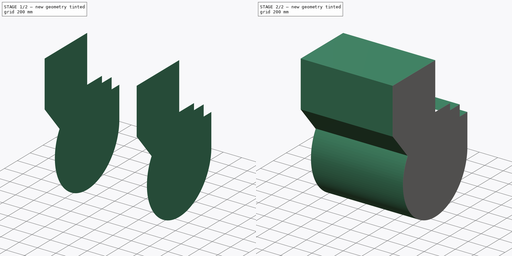
[diagram: build sequence overview — one tinted view per stage of 2, left to right]
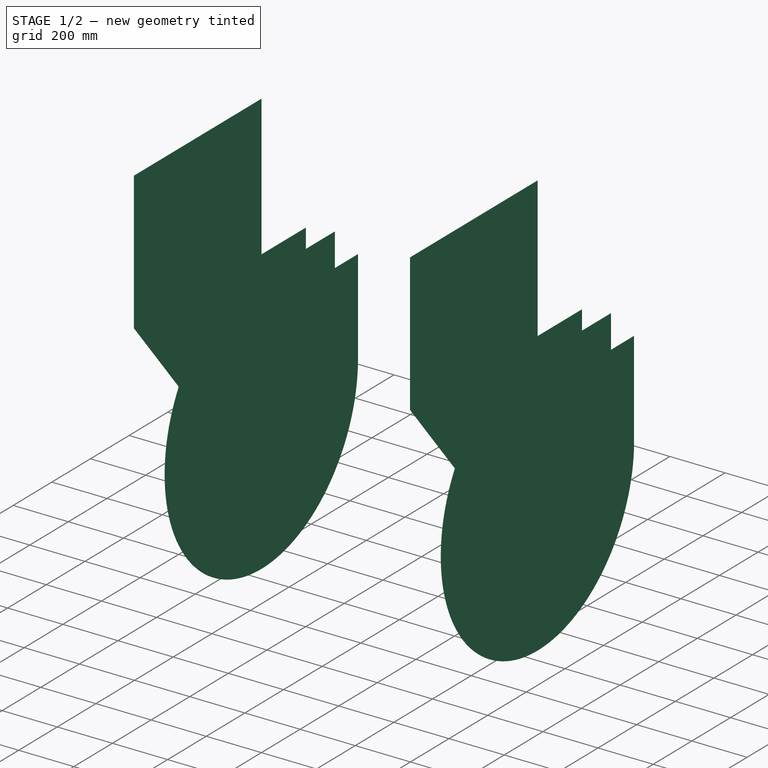
[diagram: stage 1 of 2 — iso view after this stage's code; geometry added in this stage tinted green]
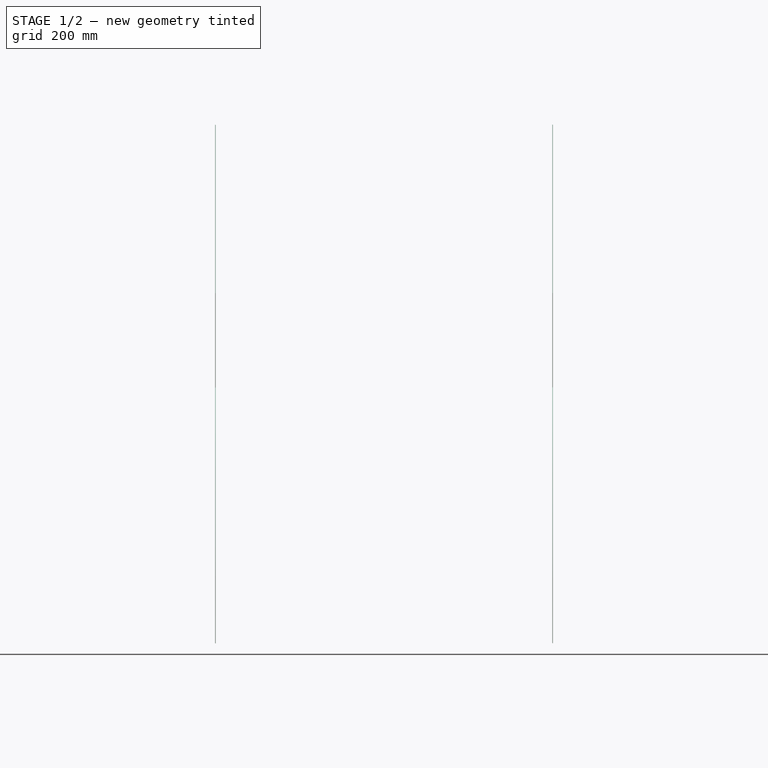
[diagram: stage 1 of 2 — front view after this stage's code; geometry added in this stage tinted green]
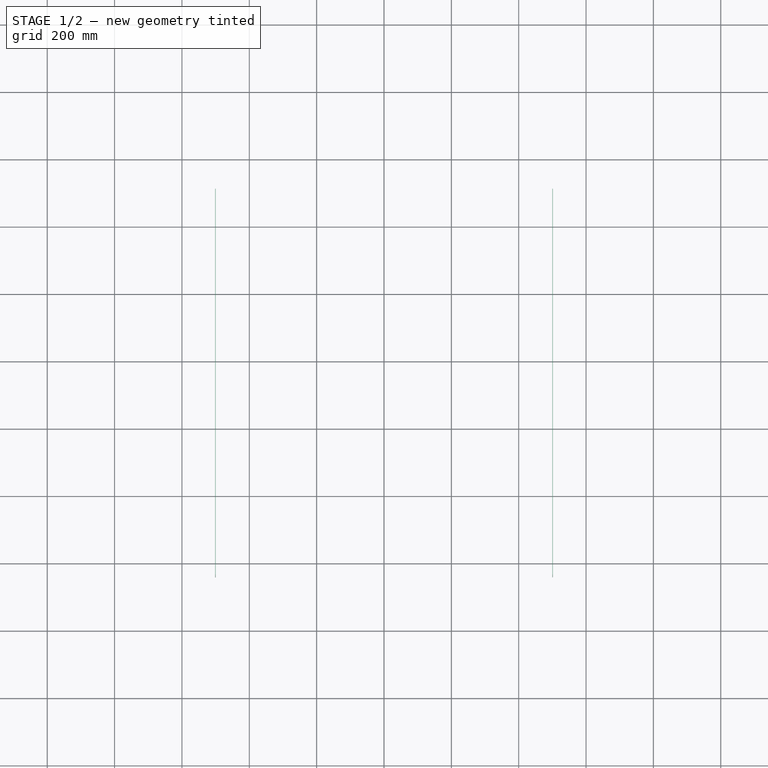
[diagram: stage 1 of 2 — top view after this stage's code; geometry added in this stage tinted green]
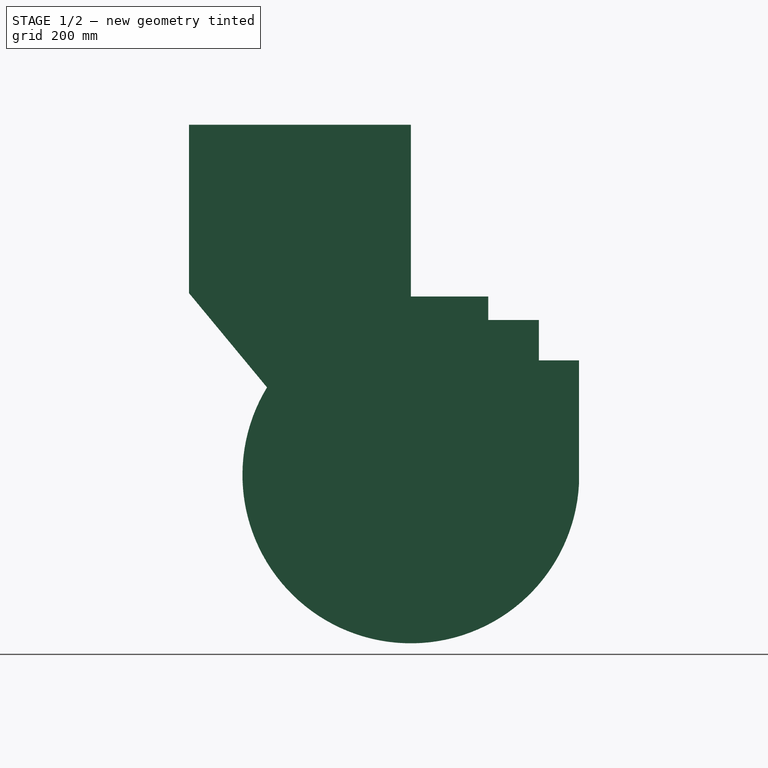
[diagram: stage 1 of 2 — right view after this stage's code; geometry added in this stage tinted green]
FCSTD DOCUMENT
Label: Shell_all_no_bin
objects: Sketcher::SketchObject×3, PartDesign::Pad×3
note: 9 computed .brp shape members not serialized (recipe doc carries the construction recipe); baked Part::Feature solids carry a one-line shape summary decoded from their .brp

FEATURE [Sketcher::SketchObject] Sketch001  label="Shell_front"
  Placement = pos=(500,0,0) rot=(0.57735,0.57735,0.57735;2.0944rad)
  sketch-geometry (13):
    g0: ArcOfCircle CenterX=0 CenterY=0 CenterZ=0 NormalX=0 NormalY=0 NormalZ=1 Radius=500 StartAngle=2.59474 EndAngle=3.84621
    g1: LineSegment StartX=-427.083 StartY=260 StartZ=0 EndX=-658.874 EndY=540 EndZ=0
    g2: LineSegment StartX=0 StartY=530 StartZ=0 EndX=230 EndY=530 EndZ=0
    g3: LineSegment StartX=230 StartY=530 StartZ=0 EndX=230 EndY=460 EndZ=0
    g4: LineSegment StartX=230 StartY=460 StartZ=0 EndX=380 EndY=460 EndZ=0
    g5: LineSegment StartX=380 StartY=460 StartZ=0 EndX=380 EndY=340 EndZ=0
    g6: LineSegment StartX=380 StartY=340 StartZ=0 EndX=499.099 EndY=340 EndZ=0
    g7: LineSegment StartX=499.099 StartY=340 StartZ=0 EndX=499.099 EndY=-30 EndZ=0
    g8: LineSegment StartX=-658.874 StartY=1040 StartZ=0 EndX=-658.874 EndY=540 EndZ=0
    g9: ArcOfCircle CenterX=0 CenterY=0 CenterZ=0 NormalX=0 NormalY=0 NormalZ=1 Radius=500 StartAngle=5.57857 EndAngle=6.22315
    g10: LineSegment StartX=-658.874 StartY=1040 StartZ=0 EndX=0 EndY=1040 EndZ=0
    g11: LineSegment StartX=0 StartY=1040 StartZ=0 EndX=0 EndY=530 EndZ=0
    g12: ArcOfCircle CenterX=0 CenterY=0 CenterZ=0 NormalX=0 NormalY=0 NormalZ=1 Radius=500 StartAngle=3.84621 EndAngle=5.57857
  constraints (40):
    c: Radius(g0) = 500
    c: DistanceX(g0) = 0
    c: DistanceY(g0) = 0
    c: Horizontal(g2)
    c: Vertical(g3)
    c: Coincident(g4,g3)
    c: Horizontal(g4)
    c: Vertical(g5)
    c: Coincident(g6,g5)
    c: Horizontal(g6)
    c: DistanceY(g1) = 540
    c: Coincident(g2,g3)
    c: Coincident(g4,g5)
    c: Coincident(g7,g9)
    c: Vertical(g7)
    c: Distance(g7) = 370
    c: Coincident(g1,g0)
    c: Coincident(g8,g1)
    c: Vertical(g8)
    c: Distance(g1) = 363.493
    c: Distance(g8) = 500
    c: Coincident(g0,g9)
    c: Coincident(g10,g8)
    c: Horizontal(g10)
    c: Coincident(g11,g10)
    c: Vertical(g11)
    c: Coincident(g6,g7)
    c: Coincident(g11,g2)
    c: DistanceX(g5) = 380
    c: DistanceY(g5) = 340
    c: DistanceX(g3) = 230
    c: DistanceY(g3) = 460
    c: DistanceX(g2) = 0
    c: DistanceY(g2) = 530
    c: DistanceY(g0) = 260
    c: Radius(g9) = 500
    c: Coincident(g12,g0)
    c: Coincident(g12,g0)
    c: DistanceY(g0) = -323.87
    c: DistanceY(g9) = -323.87
FEATURE [PartDesign::Pad] Pad001  label="Shell_front_"
  Length = 1
  MirroredExtent = false
  Sketch = -> Sketch001
FEATURE [Sketcher::SketchObject] Sketch002  label="Shell_back"
  Placement = pos=(-500,0,0) rot=(0.57735,0.57735,0.57735;2.0944rad)
  sketch-geometry (13):
    g0: ArcOfCircle CenterX=0 CenterY=0 CenterZ=0 NormalX=0 NormalY=0 NormalZ=1 Radius=500 StartAngle=2.59474 EndAngle=4.23018
    g1: LineSegment StartX=-427.083 StartY=260 StartZ=0 EndX=-658.874 EndY=540 EndZ=0
    g2: LineSegment StartX=0 StartY=530 StartZ=0 EndX=230 EndY=530 EndZ=0
    g3: LineSegment StartX=230 StartY=530 StartZ=0 EndX=230 EndY=460 EndZ=0
    g4: LineSegment StartX=230 StartY=460 StartZ=0 EndX=380 EndY=460 EndZ=0
    g5: LineSegment StartX=380 StartY=460 StartZ=0 EndX=380 EndY=340 EndZ=0
    g6: LineSegment StartX=380 StartY=340 StartZ=0 EndX=499.438 EndY=340 EndZ=0
    g7: LineSegment StartX=499.438 StartY=340 StartZ=0 EndX=499.438 EndY=-23.6939 EndZ=0
    g8: LineSegment StartX=-658.874 StartY=1040 StartZ=0 EndX=-658.874 EndY=540 EndZ=0
    g9: ArcOfCircle CenterX=0 CenterY=0 CenterZ=0 NormalX=0 NormalY=0 NormalZ=1 Radius=500 StartAngle=5.2631 EndAngle=6.23578
    g10: LineSegment StartX=-658.874 StartY=1040 StartZ=0 EndX=0 EndY=1040 EndZ=0
    g11: LineSegment StartX=0 StartY=1040 StartZ=0 EndX=0 EndY=530 EndZ=0
    g12: ArcOfCircle CenterX=0 CenterY=0 CenterZ=0 NormalX=0 NormalY=0 NormalZ=1 Radius=500 StartAngle=4.23018 EndAngle=5.2631
  constraints (40):
    c: DistanceX(g0) = 0
    c: DistanceY(g0) = 0
    c: Horizontal(g2)
    c: Vertical(g3)
    c: Coincident(g4,g3)
    c: Horizontal(g4)
    c: Vertical(g5)
    c: Coincident(g6,g5)
    c: Horizontal(g6)
    c: DistanceY(g1) = 540
    c: Coincident(g2,g3)
    c: Coincident(g4,g5)
    c: Vertical(g7)
    c: Coincident(g1,g0)
    c: Coincident(g8,g1)
    c: Vertical(g8)
    c: Distance(g1) = 363.493
    c: Distance(g8) = 500
    c: Coincident(g0,g9)
    c: Coincident(g10,g8)
    c: Horizontal(g10)
    c: Coincident(g11,g10)
    c: Vertical(g11)
    c: Coincident(g6,g7)
    c: Coincident(g11,g2)
    c: DistanceX(g5) = 380
    c: DistanceY(g5) = 340
    c: DistanceX(g3) = 230
    c: DistanceY(g3) = 460
    c: DistanceX(g2) = 0
    c: DistanceY(g2) = 530
    c: DistanceY(g0) = 260
    c: Coincident(g9,g7)
    c: Distance(g7) = 363.694
    c: Coincident(g12,g0)
    c: Coincident(g12,g9)
    c: Coincident(g12,g0)
    c: Radius(g12) = 500
    c: DistanceY(g9) = -426.077
    c: DistanceY(g0) = -442.985
FEATURE [PartDesign::Pad] Pad002  label="Shell_back_"
  Length = 1
  MirroredExtent = false
  Reversed = true
  Sketch = -> Sketch002
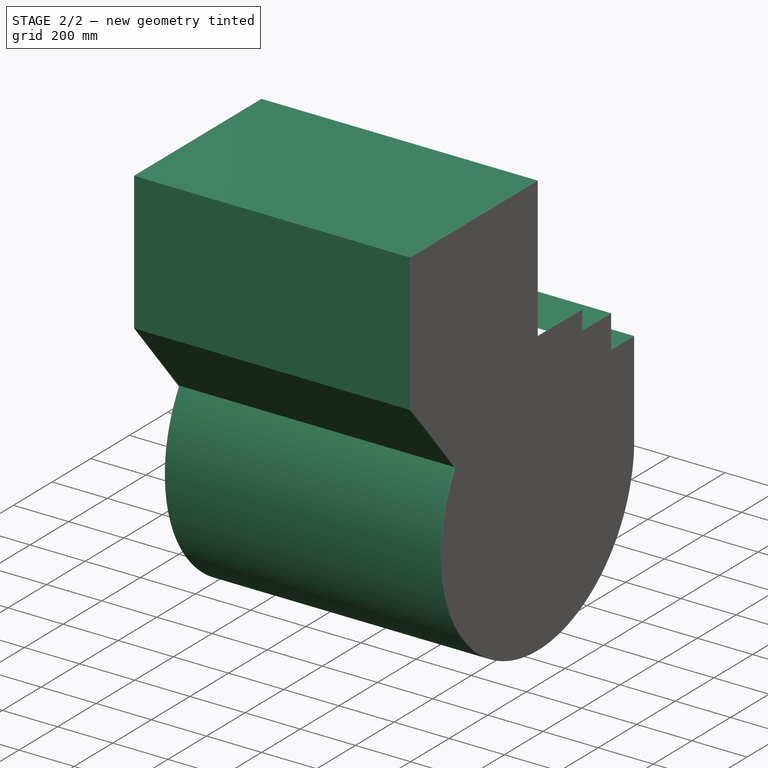
[diagram: stage 2 of 2 — iso view after this stage's code; geometry added in this stage tinted green]
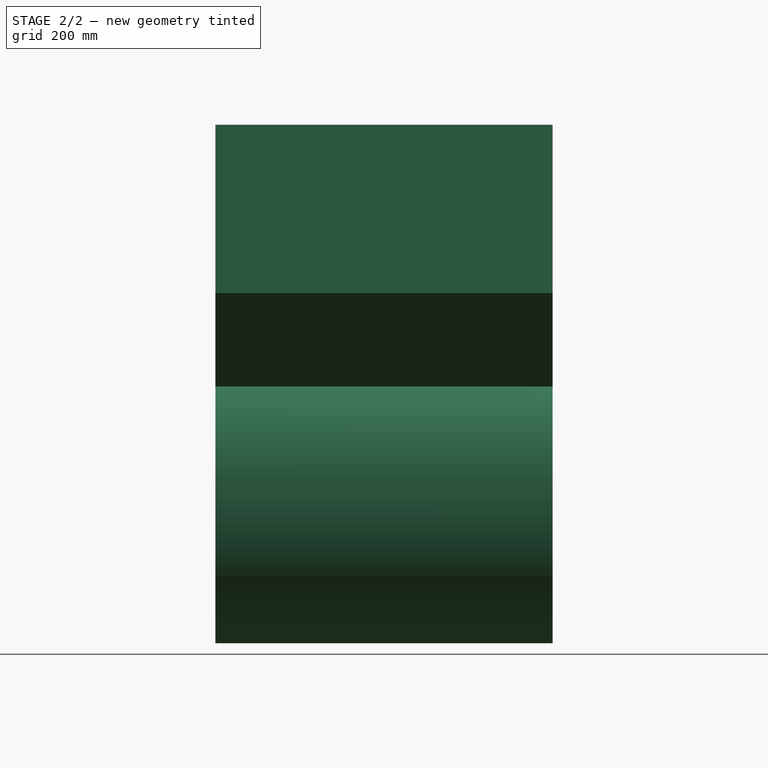
[diagram: stage 2 of 2 — front view after this stage's code; geometry added in this stage tinted green]
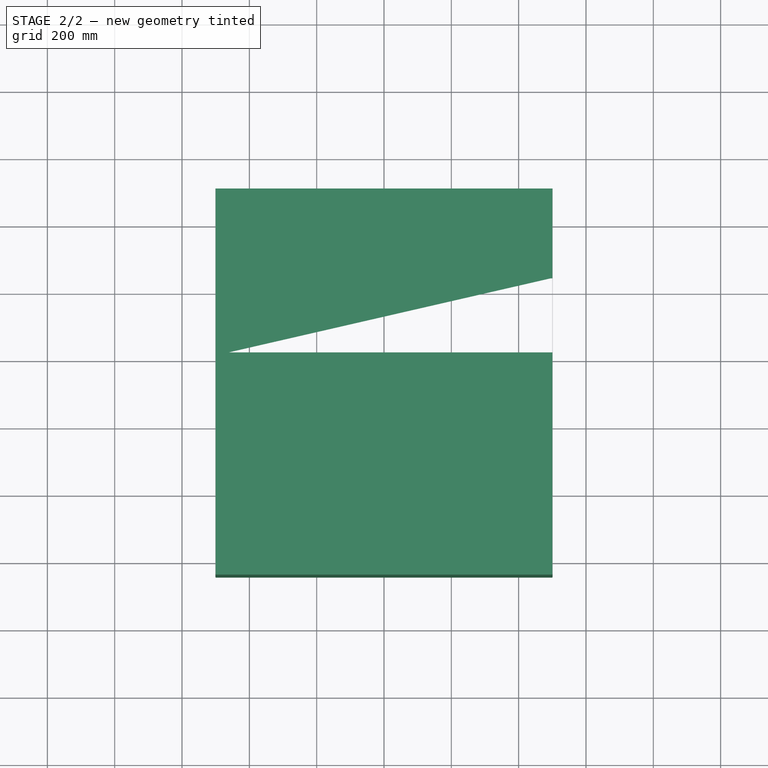
[diagram: stage 2 of 2 — top view after this stage's code; geometry added in this stage tinted green]
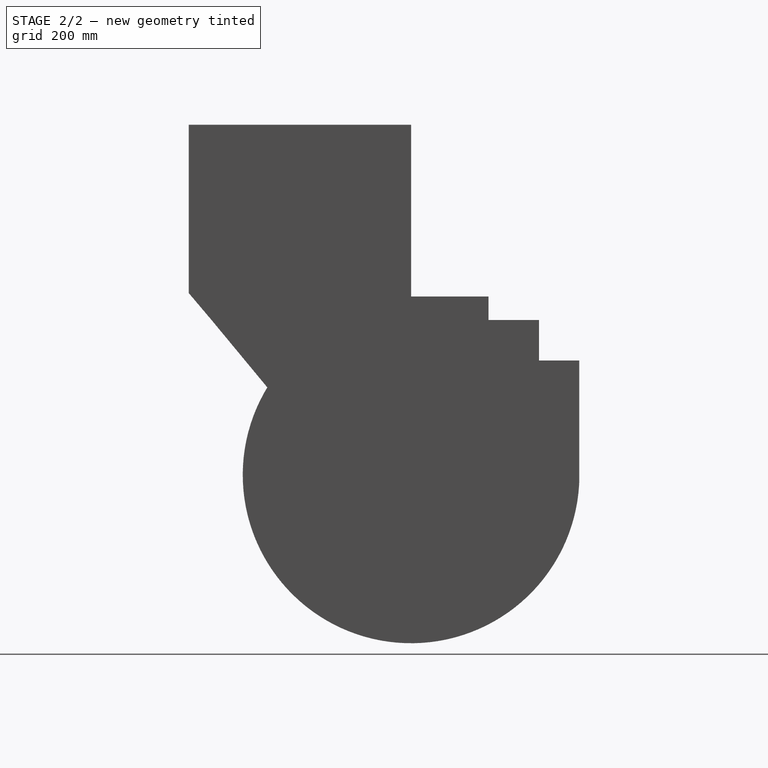
[diagram: stage 2 of 2 — right view after this stage's code; geometry added in this stage tinted green]
FEATURE [Sketcher::SketchObject] Sketch  label="Shell "
  Placement = pos=(-500,0,0) rot=(0.57735,0.57735,0.57735;2.0944rad)
  sketch-geometry (12):
    g0: LineSegment StartX=-425.532 StartY=262.53 StartZ=0 EndX=-660.346 EndY=540 EndZ=0
    g1: LineSegment StartX=0 StartY=530 StartZ=0 EndX=230 EndY=530 EndZ=0
    g2: LineSegment StartX=230 StartY=530 StartZ=0 EndX=230 EndY=460 EndZ=0
    g3: LineSegment StartX=230 StartY=460 StartZ=0 EndX=380 EndY=460 EndZ=0
    g4: LineSegment StartX=380 StartY=460 StartZ=0 EndX=380 EndY=340 EndZ=0
    g5: LineSegment StartX=380 StartY=340 StartZ=0 EndX=499.099 EndY=340 EndZ=0
    g6: LineSegment StartX=499.099 StartY=340 StartZ=0 EndX=499.099 EndY=-30 EndZ=0
    g7: LineSegment StartX=-660.346 StartY=1040 StartZ=0 EndX=-660.346 EndY=540 EndZ=0
    g8: LineSegment StartX=0 StartY=530 StartZ=0 EndX=-230 EndY=470 EndZ=0
    g9: LineSegment StartX=-660.346 StartY=1040 StartZ=0 EndX=0 EndY=1040 EndZ=0
    g10: LineSegment StartX=0 StartY=1040 StartZ=0 EndX=0 EndY=530 EndZ=0
    g11: ArcOfCircle CenterX=0 CenterY=0 CenterZ=0 NormalX=0 NormalY=0 NormalZ=1 Radius=500 StartAngle=2.58881 EndAngle=6.22315
  constraints (37):
    c: Horizontal(g1)
    c: Vertical(g2)
    c: Coincident(g3,g2)
    c: Horizontal(g3)
    c: Vertical(g4)
    c: Coincident(g5,g4)
    c: Horizontal(g5)
    c: DistanceY(g0) = 540
    c: Coincident(g1,g2)
    c: Coincident(g3,g4)
    c: Vertical(g6)
    c: Distance(g6) = 370
    c: Coincident(g7,g0)
    c: Vertical(g7)
    c: Distance(g0) = 363.493
    c: Distance(g7) = 500
    c: Coincident(g9,g7)
    c: Horizontal(g9)
    c: Coincident(g10,g9)
    c: Vertical(g10)
    c: Coincident(g5,g6)
    c: Coincident(g8,g1)
    c: Coincident(g10,g1)
    c: DistanceX(g4) = 380
    c: DistanceY(g4) = 340
    c: DistanceX(g2) = 230
    c: DistanceY(g2) = 460
    c: DistanceX(g1) = 0
    c: DistanceY(g1) = 530
    c: DistanceX(g8) = -230
    c: DistanceY(g8) = 470
    c: Coincident(g11,g0)
    c: Coincident(g11,g6)
    c: DistanceX(g11) = 0
    c: DistanceY(g11) = 0
    c: Radius(g11) = 500
    c: DistanceY(g0) = 262.53
FEATURE [PartDesign::Pad] Pad  label="Shell_"
  Length = 1000
  MirroredExtent = false
  Sketch = -> Sketch
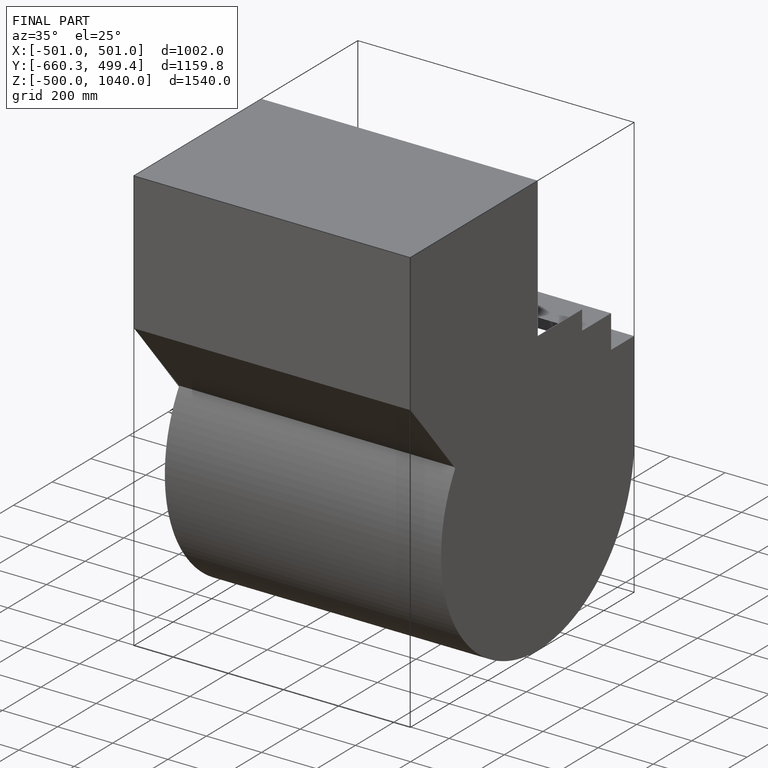
[diagram: finished part — iso view with bounding-box wireframe]
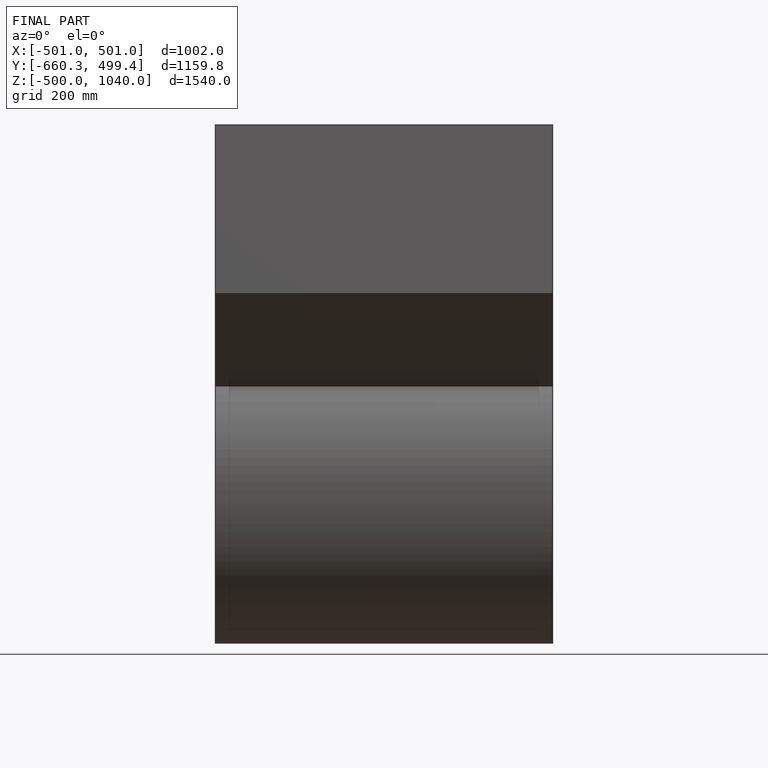
[diagram: finished part — front view with bounding-box wireframe]
